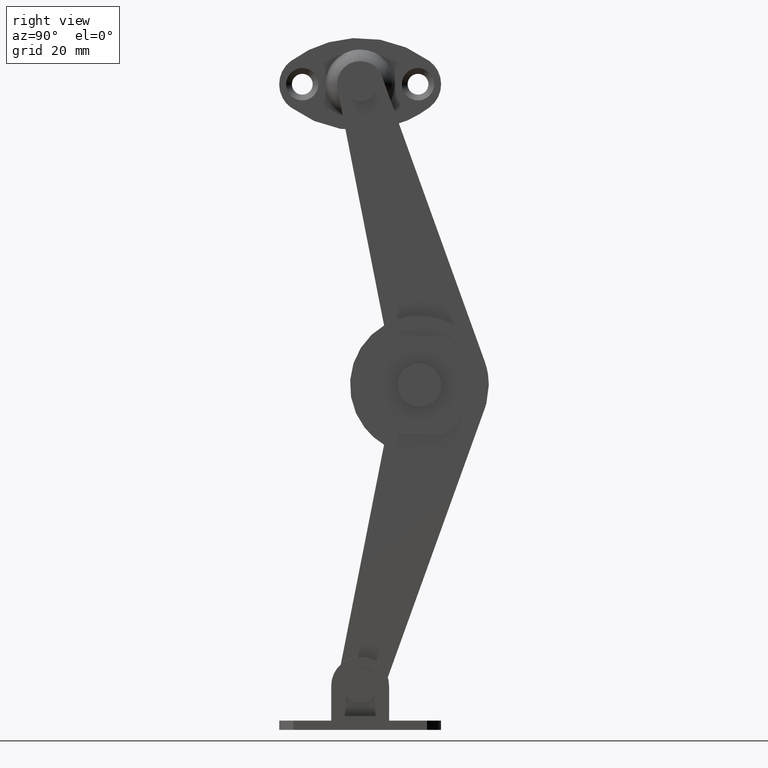
[diagram: clean part render]
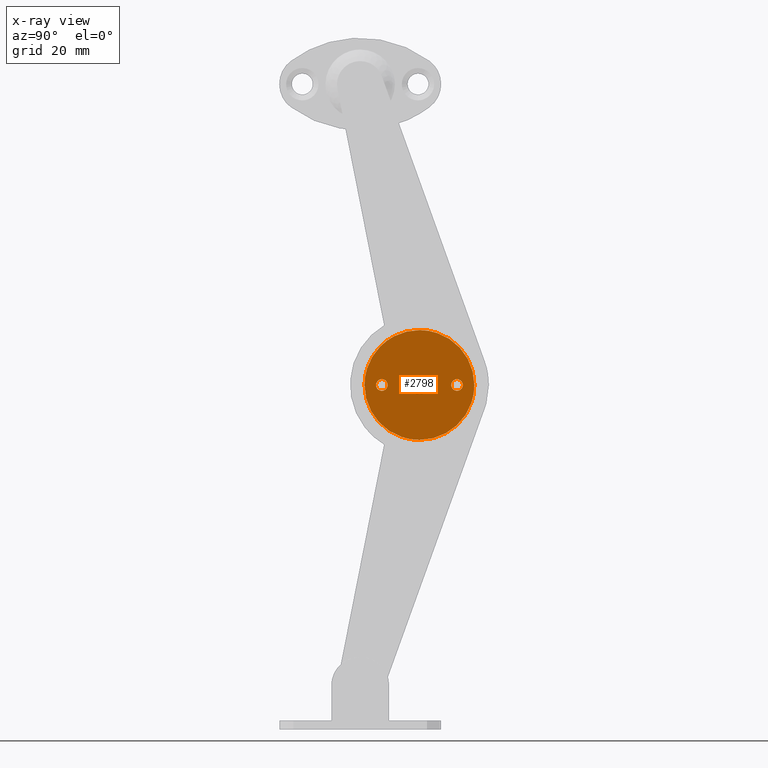
[diagram: x-ray — body ghosted, one internal face saturated and labeled with its STEP entity id]
A machine part, right view, then the same camera in x-ray: the body is ghosted and one INTERNAL B-rep face — a face not visible from any outside direction — is saturated and labeled: STEP entity #2798.
In plain terms, the highlighted face is a freeform B-spline surface patch.
Its self-contained STEP definition (entity closure, byte-faithful):
#1976=CARTESIAN_POINT('',(5.500000000000000,3.101231174622307,0.763555625562746));
#1977=VERTEX_POINT('',#1976);
#1983=CARTESIAN_POINT('',(5.500000000000000,2.746973262321153,0.000000075354275));
#1984=VERTEX_POINT('',#1983);
#1985=CARTESIAN_POINT('',(5.500000000000000,3.101231174622307,0.763555625562746));
#1986=CARTESIAN_POINT('',(5.499999999999995,3.018264551614383,0.693464261853822));
#1987=CARTESIAN_POINT('',(5.500000000000010,2.881497121968171,0.532894229676392));
#1988=CARTESIAN_POINT('',(5.499999999999998,2.769180346171755,0.262448766694234));
#1989=CARTESIAN_POINT('',(5.499999999999996,2.746959930396125,0.081450339986608));
#1990=CARTESIAN_POINT('',(5.500000000000000,2.746973262321153,0.000000075354275));
#1991=B_SPLINE_CURVE_WITH_KNOTS('',3,(#1985,#1986,#1987,#1988,#1989,#1990),.UNSPECIFIED.,.F.,.U.,(4,1,1,4),(0.000000092502401,0.325823542214571,0.624467632066516,0.868828182864586),.UNSPECIFIED.);
#1992=EDGE_CURVE('',#1977,#1984,#1991,.T.);
#1994=CARTESIAN_POINT('',(5.500000000000000,3.746973262321150,-1.000000000000000));
#1995=VERTEX_POINT('',#1994);
#1996=CARTESIAN_POINT('',(5.500000000000000,2.746973262321153,0.000000075354275));
#1997=CARTESIAN_POINT('',(5.500000000000004,2.746939603212214,-0.106349447042598));
#1998=CARTESIAN_POINT('',(5.499999999999993,2.786403337311727,-0.351827811797574));
#1999=CARTESIAN_POINT('',(5.499999999999997,2.958909321883511,-0.647974648553926));
#2000=CARTESIAN_POINT('',(5.500000000000001,3.180202641837875,-0.833891085342265));
#2001=CARTESIAN_POINT('',(5.500000000000005,3.427999297458877,-0.962494275878654));
#2002=CARTESIAN_POINT('',(5.499999999999998,3.616042359832250,-1.000155919354968));
#2003=CARTESIAN_POINT('',(5.500000000000000,3.746973262321150,-1.000000000000000));
#2004=B_SPLINE_CURVE_WITH_KNOTS('',3,(#1996,#1997,#1998,#1999,#2000,#2001,#2002,#2003),.UNSPECIFIED.,.F.,.U.,(4,1,1,1,1,4),(0.000000279960961,0.319075630946871,0.736351364546628,1.006309378227087,1.178126950739634,1.570835786861316),.UNSPECIFIED.);
#2005=EDGE_CURVE('',#1984,#1995,#2004,.T.);
#2007=CARTESIAN_POINT('',(5.500000000000000,4.746973262321149,-0.000000075354277));
#2008=VERTEX_POINT('',#2007);
#2009=CARTESIAN_POINT('',(5.500000000000000,3.746973262321150,-1.000000000000000));
#2010=CARTESIAN_POINT('',(5.500000000000002,3.918895784061225,-1.000434038676849));
#2011=CARTESIAN_POINT('',(5.500000000000000,4.163883112678332,-0.935154970303376));
#2012=CARTESIAN_POINT('',(5.500000000000004,4.437370115167362,-0.737343671710825));
#2013=CARTESIAN_POINT('',(5.499999999999994,4.591523347667907,-0.554168469176058));
#2014=CARTESIAN_POINT('',(5.500000000000005,4.714261109344331,-0.302652220103985));
#2015=CARTESIAN_POINT('',(5.500000000000007,4.747061483268317,-0.114550637292840));
#2016=CARTESIAN_POINT('',(5.500000000000000,4.746973262321149,-0.000000075354277));
#2017=B_SPLINE_CURVE_WITH_KNOTS('',3,(#2009,#2010,#2011,#2012,#2013,#2014,#2015,#2016),.UNSPECIFIED.,.F.,.U.,(4,1,1,1,1,4),(0.000000280063426,0.515444706754066,0.736351324670333,1.006309323662234,1.227218501160870,1.570835701917371),.UNSPECIFIED.);
#2018=EDGE_CURVE('',#1995,#2008,#2017,.T.);
#2020=CARTESIAN_POINT('',(5.500000000000000,4.472347745218104,0.688354430461838));
#2021=VERTEX_POINT('',#2020);
#2022=CARTESIAN_POINT('',(5.500000000000000,4.746973262321149,-0.000000075354277));
#2023=CARTESIAN_POINT('',(5.499999999999998,4.747023575746380,0.110724198141549));
#2024=CARTESIAN_POINT('',(5.500000000000000,4.704527775724507,0.363763568218193));
#2025=CARTESIAN_POINT('',(5.500000000000002,4.570503083332905,0.585208104801776));
#2026=CARTESIAN_POINT('',(5.500000000000000,4.472347745218104,0.688354430461838));
#2027=B_SPLINE_CURVE_WITH_KNOTS('',3,(#2022,#2023,#2024,#2025,#2026),.UNSPECIFIED.,.F.,.U.,(4,1,4),(0.000000059499898,0.332172369733507,0.759235913434067),.UNSPECIFIED.);
#2028=EDGE_CURVE('',#2008,#2021,#2027,.T.);
#2107=CARTESIAN_POINT('',(5.500000000000000,3.746973262321150,1.0));
#2108=VERTEX_POINT('',#2107);
#2109=CARTESIAN_POINT('',(5.500000000000000,4.472347745218104,0.688354430461838));
#2110=CARTESIAN_POINT('',(5.500000000000005,4.385122576152674,0.780432013743911));
#2111=CARTESIAN_POINT('',(5.499999999999996,4.161046227194833,0.940592202719877));
#2112=CARTESIAN_POINT('',(5.500000000000001,3.890715980265631,1.000210075695861));
#2113=CARTESIAN_POINT('',(5.500000000000000,3.746973262321150,1.0));
#2114=B_SPLINE_CURVE_WITH_KNOTS('',3,(#2109,#2110,#2111,#2112,#2113),.UNSPECIFIED.,.F.,.U.,(4,1,4),(0.000000082981635,0.380459844575957,0.811600022451455),.UNSPECIFIED.);
#2115=EDGE_CURVE('',#2021,#2108,#2114,.T.);
#2117=CARTESIAN_POINT('',(5.500000000000000,3.746973262321150,1.0));
#2118=CARTESIAN_POINT('',(5.499999999999999,3.644593537738520,1.000050388129216));
#2119=CARTESIAN_POINT('',(5.500000000000004,3.410623991678573,0.963740735704477));
#2120=CARTESIAN_POINT('',(5.500000000000004,3.201657129426836,0.848685281217780));
#2121=CARTESIAN_POINT('',(5.500000000000000,3.101231174622307,0.763555625562746));
#2122=B_SPLINE_CURVE_WITH_KNOTS('',3,(#2117,#2118,#2119,#2120,#2121),.UNSPECIFIED.,.F.,.U.,(4,1,4),(0.000000048454397,0.307147560869581,0.702051018800114),.UNSPECIFIED.);
#2123=EDGE_CURVE('',#2108,#1977,#2122,.T.);
#2167=CARTESIAN_POINT('',(5.500000000000000,16.101231174622310,0.763555625562746));
#2168=VERTEX_POINT('',#2167);
#2174=CARTESIAN_POINT('',(5.500000000000000,15.746973262321150,0.000000075354275));
#2175=VERTEX_POINT('',#2174);
#2176=CARTESIAN_POINT('',(5.500000000000000,16.101231174622310,0.763555625562746));
#2177=CARTESIAN_POINT('',(5.500000000000000,16.025195869688691,0.699295768931956));
#2178=CARTESIAN_POINT('',(5.500000000000003,15.886504349503531,0.540958193571461));
#2179=CARTESIAN_POINT('',(5.500000000000012,15.770268127382360,0.271513373870808));
#2180=CARTESIAN_POINT('',(5.499999999999989,15.746964843578070,0.081448703885008));
#2181=CARTESIAN_POINT('',(5.500000000000000,15.746973262321150,0.000000075354275));
#2182=B_SPLINE_CURVE_WITH_KNOTS('',3,(#2176,#2177,#2178,#2179,#2180,#2181),.UNSPECIFIED.,.F.,.U.,(4,1,1,4),(0.000000092502642,0.298663618590785,0.624467632066582,0.868828182864582),.UNSPECIFIED.);
#2183=EDGE_CURVE('',#2168,#2175,#2182,.T.);
#2185=CARTESIAN_POINT('',(5.500000000000000,16.746973262321148,-0.999999999999999));
#2186=VERTEX_POINT('',#2185);
#2187=CARTESIAN_POINT('',(5.500000000000000,15.746973262321150,0.000000075354275));
#2188=CARTESIAN_POINT('',(5.499999999999989,15.746742476447080,-0.147307297190278));
#2189=CARTESIAN_POINT('',(5.499999999999985,15.807730226928509,-0.417058088339358));
#2190=CARTESIAN_POINT('',(5.500000000000099,16.031907927682479,-0.727296611164336));
#2191=CARTESIAN_POINT('',(5.499999999999752,16.346251552996311,-0.942906262244544));
#2192=CARTESIAN_POINT('',(5.500000000000261,16.599668823243139,-1.000229397503235));
#2193=CARTESIAN_POINT('',(5.500000000000000,16.746973262321148,-0.999999999999999));
#2194=B_SPLINE_CURVE_WITH_KNOTS('',3,(#2187,#2188,#2189,#2190,#2191,#2192,#2193),.UNSPECIFIED.,.F.,.U.,(4,1,1,1,4),(0.000000279961942,0.441800355216181,0.809920607290484,1.129035344321470,1.570835786861317),.UNSPECIFIED.);
#2195=EDGE_CURVE('',#2175,#2186,#2194,.T.);
#2197=CARTESIAN_POINT('',(5.500000000000000,17.746973262321148,-0.000000075354276));
#2198=VERTEX_POINT('',#2197);
#2199=CARTESIAN_POINT('',(5.500000000000000,16.746973262321148,-0.999999999999999));
#2200=CARTESIAN_POINT('',(5.500000000000016,16.877901180281011,-1.000147458322347));
#2201=CARTESIAN_POINT('',(5.499999999999984,17.082307220535089,-0.959230814966327));
#2202=CARTESIAN_POINT('',(5.500000000000018,17.341902025300950,-0.816327546082075));
#2203=CARTESIAN_POINT('',(5.499999999999988,17.547623192821039,-0.625331078536956));
#2204=CARTESIAN_POINT('',(5.500000000000013,17.707211315039370,-0.343589074569817));
#2205=CARTESIAN_POINT('',(5.499999999999994,17.747037043074741,-0.114541944956821));
#2206=CARTESIAN_POINT('',(5.500000000000000,17.746973262321148,-0.000000075354276));
#2207=B_SPLINE_CURVE_WITH_KNOTS('',3,(#2199,#2200,#2201,#2202,#2203,#2204,#2205,#2206),.UNSPECIFIED.,.F.,.U.,(4,1,1,1,1,4),(0.000000280061553,0.392710020774392,0.613615461163643,0.883567144165357,1.227218501160543,1.570835701917383),.UNSPECIFIED.);
#2208=EDGE_CURVE('',#2186,#2198,#2207,.T.);
#2210=CARTESIAN_POINT('',(5.500000000000000,17.472347745218102,0.688354430461839));
#2211=VERTEX_POINT('',#2210);
#2212=CARTESIAN_POINT('',(5.500000000000000,17.746973262321148,-0.000000075354276));
#2213=CARTESIAN_POINT('',(5.499999999999996,17.747128487368538,0.134459325471806));
#2214=CARTESIAN_POINT('',(5.500000000000007,17.695114943701618,0.387402711005925));
#2215=CARTESIAN_POINT('',(5.500000000000000,17.554071757060090,0.602345823704303));
#2216=CARTESIAN_POINT('',(5.500000000000000,17.472347745218102,0.688354430461839));
#2217=B_SPLINE_CURVE_WITH_KNOTS('',3,(#2212,#2213,#2214,#2215,#2216),.UNSPECIFIED.,.F.,.U.,(4,1,4),(0.000000059499835,0.403325843501995,0.759235913434069),.UNSPECIFIED.);
#2218=EDGE_CURVE('',#2198,#2211,#2217,.T.);
#2296=CARTESIAN_POINT('',(5.500000000000000,16.746973262321148,1.000000000000001));
#2297=VERTEX_POINT('',#2296);
#2298=CARTESIAN_POINT('',(5.500000000000000,17.472347745218102,0.688354430461839));
#2299=CARTESIAN_POINT('',(5.500000000000004,17.385120388006040,0.780427138440315));
#2300=CARTESIAN_POINT('',(5.500000000000002,17.161052198033449,0.940606665948201));
#2301=CARTESIAN_POINT('',(5.500000000000000,16.890713384166709,1.000198713666217));
#2302=CARTESIAN_POINT('',(5.500000000000000,16.746973262321148,1.000000000000001));
#2303=B_SPLINE_CURVE_WITH_KNOTS('',3,(#2298,#2299,#2300,#2301,#2302),.UNSPECIFIED.,.F.,.U.,(4,1,4),(0.000000082982433,0.380459844576124,0.811600022451455),.UNSPECIFIED.);
#2304=EDGE_CURVE('',#2211,#2297,#2303,.T.);
#2306=CARTESIAN_POINT('',(5.500000000000000,16.746973262321148,1.000000000000001));
#2307=CARTESIAN_POINT('',(5.500000000000008,16.615323320736849,1.000152487082222));
#2308=CARTESIAN_POINT('',(5.499999999999986,16.381462499481319,0.953064574340600));
#2309=CARTESIAN_POINT('',(5.500000000000017,16.179373201832419,0.829705254204395));
#2310=CARTESIAN_POINT('',(5.500000000000000,16.101231174622310,0.763555625562746));
#2311=B_SPLINE_CURVE_WITH_KNOTS('',3,(#2306,#2307,#2308,#2309,#2310),.UNSPECIFIED.,.F.,.U.,(4,1,4),(0.000000048454626,0.394903506381800,0.702051018800111),.UNSPECIFIED.);
#2312=EDGE_CURVE('',#2297,#2168,#2311,.T.);
#2356=CARTESIAN_POINT('',(5.500000000000001,11.392307299489779,0.968613541957452));
#2357=VERTEX_POINT('',#2356);
#2363=CARTESIAN_POINT('',(5.500000000000000,10.246973262321140,1.500000000000002));
#2364=VERTEX_POINT('',#2363);
#2365=CARTESIAN_POINT('',(5.500000000000001,11.392307299489779,0.968613541957452));
#2366=CARTESIAN_POINT('',(5.499999999999996,11.243553967501610,1.145122482735536));
#2367=CARTESIAN_POINT('',(5.500000000000022,10.884827054675430,1.410162885297682));
#2368=CARTESIAN_POINT('',(5.499999999999975,10.450633458435689,1.500198197194138));
#2369=CARTESIAN_POINT('',(5.500000000000000,10.246973262321140,1.500000000000002));
#2370=B_SPLINE_CURVE_WITH_KNOTS('',3,(#2365,#2366,#2367,#2368,#2369),.UNSPECIFIED.,.F.,.U.,(4,1,4),(0.000000083457594,0.692330028737345,1.303242774409602),.UNSPECIFIED.);
#2371=EDGE_CURVE('',#2357,#2364,#2370,.T.);
#2373=CARTESIAN_POINT('',(5.500000000000000,8.746973262324227,-0.000003042715460));
#2374=VERTEX_POINT('',#2373);
#2375=CARTESIAN_POINT('',(5.500000000000000,10.246973262321140,1.500000000000002));
#2376=CARTESIAN_POINT('',(5.499999999999982,10.026020416261600,1.500316773705991));
#2377=CARTESIAN_POINT('',(5.500000000000020,9.621354798627051,1.408919630390881));
#2378=CARTESIAN_POINT('',(5.500000000000008,9.156054195739142,1.072551927399056));
#2379=CARTESIAN_POINT('',(5.499999999999973,8.832560798669469,0.601106342113876));
#2380=CARTESIAN_POINT('',(5.500000000000038,8.746671313031017,0.220935439444507));
#2381=CARTESIAN_POINT('',(5.500000000000000,8.746973262324227,-0.000003042715460));
#2382=B_SPLINE_CURVE_WITH_KNOTS('',3,(#2375,#2376,#2377,#2378,#2379,#2380,#2381),.UNSPECIFIED.,.F.,.U.,(4,1,1,1,4),(0.000000283861715,0.662700760889219,1.214902453565014,1.693554856234692,2.356255331524174),.UNSPECIFIED.);
#2383=EDGE_CURVE('',#2364,#2374,#2382,.T.);
#2385=CARTESIAN_POINT('',(5.500000000000000,10.246973262321140,-1.499999999999998));
#2386=VERTEX_POINT('',#2385);
#2387=CARTESIAN_POINT('',(5.500000000000000,8.746973262324227,-0.000003042715460));
#2388=CARTESIAN_POINT('',(5.499999999999999,8.746861545996756,-0.171822070326154));
#2389=CARTESIAN_POINT('',(5.500000000000009,8.804521788459931,-0.503097638430968));
#2390=CARTESIAN_POINT('',(5.500000000000000,9.014257694124488,-0.884190575551771));
#2391=CARTESIAN_POINT('',(5.500000000000000,9.286409950959261,-1.169938880105032));
#2392=CARTESIAN_POINT('',(5.499999999999985,9.670440260591736,-1.419903121654824));
#2393=CARTESIAN_POINT('',(5.499999999999993,10.026014295606720,-1.500345477506091));
#2394=CARTESIAN_POINT('',(5.500000000000000,10.246973262321140,-1.499999999999998));
#2395=B_SPLINE_CURVE_WITH_KNOTS('',3,(#2387,#2388,#2389,#2390,#2391,#2392,#2393,#2394),.UNSPECIFIED.,.F.,.U.,(4,1,1,1,1,4),(0.000000288017779,0.515426583519847,0.994074968509131,1.288574122024787,1.693552388405666,2.356251901589093),.UNSPECIFIED.);
#2396=EDGE_CURVE('',#2374,#2386,#2395,.T.);
#2398=CARTESIAN_POINT('',(5.500000000000002,11.279504755844140,-1.088060860417998));
#2399=VERTEX_POINT('',#2398);
#2400=CARTESIAN_POINT('',(5.500000000000000,10.246973262321140,-1.499999999999998));
#2401=CARTESIAN_POINT('',(5.500000000000015,10.424936779936241,-1.500139606686057));
#2402=CARTESIAN_POINT('',(5.499999999999981,10.804441182681810,-1.431620550348039));
#2403=CARTESIAN_POINT('',(5.500000000000014,11.133352545530530,-1.227064351106837));
#2404=CARTESIAN_POINT('',(5.500000000000002,11.279504755844140,-1.088060860417998));
#2405=B_SPLINE_CURVE_WITH_KNOTS('',3,(#2400,#2401,#2402,#2403,#2404),.UNSPECIFIED.,.F.,.U.,(4,1,4),(0.000000055617372,0.533851520431574,1.138853963789040),.UNSPECIFIED.);
#2406=EDGE_CURVE('',#2386,#2399,#2405,.T.);
#2484=CARTESIAN_POINT('',(5.500000000000001,11.746973262318051,0.000003042715470));
#2485=VERTEX_POINT('',#2484);
#2486=CARTESIAN_POINT('',(5.500000000000002,11.279504755844140,-1.088060860417998));
#2487=CARTESIAN_POINT('',(5.500000000000019,11.454687601032020,-0.922485013528898));
#2488=CARTESIAN_POINT('',(5.499999999999974,11.679456076450080,-0.570636515109932));
#2489=CARTESIAN_POINT('',(5.500000000000024,11.747053558361801,-0.164846950357479));
#2490=CARTESIAN_POINT('',(5.500000000000001,11.746973262318051,0.000003042715470));
#2491=B_SPLINE_CURVE_WITH_KNOTS('',3,(#2486,#2487,#2488,#2489,#2490),.UNSPECIFIED.,.F.,.U.,(4,1,4),(0.000000077546991,0.722828752754165,1.217402295470105),.UNSPECIFIED.);
#2492=EDGE_CURVE('',#2399,#2485,#2491,.T.);
#2494=CARTESIAN_POINT('',(5.500000000000001,11.746973262318051,0.000003042715470));
#2495=CARTESIAN_POINT('',(5.499999999999999,11.747001159338030,0.131628305940631));
#2496=CARTESIAN_POINT('',(5.500000000000005,11.700516654936539,0.482631893513646));
#2497=CARTESIAN_POINT('',(5.500000000000019,11.534292416444501,0.801290926831948));
#2498=CARTESIAN_POINT('',(5.500000000000001,11.392307299489779,0.968613541957452));
#2499=B_SPLINE_CURVE_WITH_KNOTS('',3,(#2494,#2495,#2496,#2497,#2498),.UNSPECIFIED.,.F.,.U.,(4,1,4),(0.000000047974360,0.394889115841552,1.053010386949280),.UNSPECIFIED.);
#2500=EDGE_CURVE('',#2485,#2357,#2499,.T.);
#2545=CARTESIAN_POINT('',(5.500000000000000,3.438789232603965,6.625603707953229));
#2546=VERTEX_POINT('',#2545);
#2552=CARTESIAN_POINT('',(5.500000000000000,10.246973262321140,9.500000000000002));
#2553=VERTEX_POINT('',#2552);
#2554=CARTESIAN_POINT('',(5.500000000000000,10.246973262321140,9.500000000000002));
#2555=CARTESIAN_POINT('',(5.500000000000008,9.574900454006560,9.500095629618391));
#2556=CARTESIAN_POINT('',(5.499999999999991,8.270348073692810,9.360987974990406));
#2557=CARTESIAN_POINT('',(5.500000000000013,6.417557320713463,8.763268998346728));
#2558=CARTESIAN_POINT('',(5.499999999999949,4.789568738495135,7.848568041747922));
#2559=CARTESIAN_POINT('',(5.500000000000031,3.852324276954939,7.050622286306175));
#2560=CARTESIAN_POINT('',(5.500000000000000,3.438789232603965,6.625603707953229));
#2561=B_SPLINE_CURVE_WITH_KNOTS('',3,(#2554,#2555,#2556,#2557,#2558,#2559,#2560),.UNSPECIFIED.,.F.,.U.,(4,1,1,1,4),(0.000000024711917,2.016212166222108,3.913807739666234,5.811431895230525,7.590439482728644),.UNSPECIFIED.);
#2562=EDGE_CURVE('',#2553,#2546,#2561,.T.);
#2564=CARTESIAN_POINT('',(5.499999999999999,19.746973262321060,0.000001205215964));
#2565=VERTEX_POINT('',#2564);
#2566=CARTESIAN_POINT('',(5.499999999999999,19.746973262321060,0.000001205215964));
#2567=CARTESIAN_POINT('',(5.499999999999998,19.747213220763921,0.816109401533110));
#2568=CARTESIAN_POINT('',(5.499999999999999,19.595777089933879,1.981779009340634));
#2569=CARTESIAN_POINT('',(5.500000000000000,19.032661475564289,3.722240971223645));
#2570=CARTESIAN_POINT('',(5.499999999999984,18.321410595698271,5.113935043055388));
#2571=CARTESIAN_POINT('',(5.500000000000018,17.289472558405311,6.436067083055116));
#2572=CARTESIAN_POINT('',(5.499999999999989,15.976338663296850,7.656192329512024));
#2573=CARTESIAN_POINT('',(5.499999999999925,14.476316428030501,8.580390327961855));
#2574=CARTESIAN_POINT('',(5.500000000000046,12.461886926128511,9.315064064070786));
#2575=CARTESIAN_POINT('',(5.500000000000051,11.101947715753900,9.500316085371390));
#2576=CARTESIAN_POINT('',(5.500000000000000,10.246973262321140,9.500000000000002));
#2577=B_SPLINE_CURVE_WITH_KNOTS('',3,(#2566,#2567,#2568,#2569,#2570,#2571,#2572,#2573,#2574,#2575,#2576),.UNSPECIFIED.,.F.,.U.,(4,1,1,1,1,1,1,1,4),(0.000000087017884,2.448233164831789,3.497495557203710,5.479432654827759,7.111623779941777,8.510542306412468,10.842242906003280,12.357840343372599,14.922658058031709),.UNSPECIFIED.);
#2578=EDGE_CURVE('',#2565,#2553,#2577,.T.);
#2580=CARTESIAN_POINT('',(5.500000000000000,10.246973262321140,-9.499999999999998));
#2581=VERTEX_POINT('',#2580);
#2582=CARTESIAN_POINT('',(5.500000000000000,10.246973262321140,-9.499999999999998));
#2583=CARTESIAN_POINT('',(5.500000000000005,10.752152635075630,-9.500011762752047));
#2584=CARTESIAN_POINT('',(5.499999999999996,11.917997424673599,-9.406880243048551));
#2585=CARTESIAN_POINT('',(5.500000000000003,13.539959383300630,-8.968694537929160));
#2586=CARTESIAN_POINT('',(5.500000000000000,15.156380846812450,-8.192012206379596));
#2587=CARTESIAN_POINT('',(5.500000000000001,16.453880591549421,-7.254141567727182));
#2588=CARTESIAN_POINT('',(5.500000000000020,17.732977522378320,-5.943384430071774));
#2589=CARTESIAN_POINT('',(5.499999999999913,18.745206176016790,-4.408184206539910));
#2590=CARTESIAN_POINT('',(5.500000000000075,19.546211805692462,-2.331513939206370));
#2591=CARTESIAN_POINT('',(5.499999999999916,19.747271644941129,-0.854962081230056));
#2592=CARTESIAN_POINT('',(5.499999999999999,19.746973262321060,0.000001205215964));
#2593=B_SPLINE_CURVE_WITH_KNOTS('',3,(#2582,#2583,#2584,#2585,#2586,#2587,#2588,#2589,#2590,#2591,#2592),.UNSPECIFIED.,.F.,.U.,(4,1,1,1,1,1,1,1,4),(0.000000086610015,1.515557629474909,3.497495875260780,5.013098897114224,6.878444320031098,8.277398256391983,10.492485157046030,12.357841468732490,14.922659416599450),.UNSPECIFIED.);
#2594=EDGE_CURVE('',#2581,#2565,#2593,.T.);
#2596=CARTESIAN_POINT('',(5.500000000000000,3.242838283269572,-6.418107111774969));
#2597=VERTEX_POINT('',#2596);
#2598=CARTESIAN_POINT('',(5.500000000000000,3.242838283269572,-6.418107111774969));
#2599=CARTESIAN_POINT('',(5.499999999999996,3.713859251810376,-6.932338973686958));
#2600=CARTESIAN_POINT('',(5.500000000000006,4.614624264986195,-7.720321072406308));
#2601=CARTESIAN_POINT('',(5.500000000000004,6.281964739941185,-8.699876993542365));
#2602=CARTESIAN_POINT('',(5.499999999999977,8.113972743205794,-9.341261426654647));
#2603=CARTESIAN_POINT('',(5.500000000000015,9.549632252487829,-9.500108884043243));
#2604=CARTESIAN_POINT('',(5.500000000000000,10.246973262321140,-9.499999999999998));
#2605=B_SPLINE_CURVE_WITH_KNOTS('',3,(#2598,#2599,#2600,#2601,#2602,#2603,#2604),.UNSPECIFIED.,.F.,.U.,(4,1,1,1,4),(0.000000023709327,2.092024159589341,3.568766465442361,5.783829384309437,7.875853520182186),.UNSPECIFIED.);
#2606=EDGE_CURVE('',#2597,#2581,#2605,.T.);
#2697=CARTESIAN_POINT('',(5.500000000000000,0.746973262321217,-0.000001205215759));
#2698=VERTEX_POINT('',#2697);
#2699=CARTESIAN_POINT('',(5.500000000000000,0.746973262321217,-0.000001205215759));
#2700=CARTESIAN_POINT('',(5.499999999999999,0.746706699292627,-0.844175778073414));
#2701=CARTESIAN_POINT('',(5.500000000000011,0.929202616507213,-2.201992951397958));
#2702=CARTESIAN_POINT('',(5.499999999999989,1.506473547290623,-3.794457455850411));
#2703=CARTESIAN_POINT('',(5.500000000000027,2.203617034044755,-5.130319592060387));
#2704=CARTESIAN_POINT('',(5.499999999999984,2.796425187840913,-5.931105087300495));
#2705=CARTESIAN_POINT('',(5.500000000000000,3.242838283269572,-6.418107111774969));
#2706=B_SPLINE_CURVE_WITH_KNOTS('',3,(#2699,#2700,#2701,#2702,#2703,#2704,#2705),.UNSPECIFIED.,.F.,.U.,(4,1,1,1,4),(0.000000024732954,2.532447323878497,4.073929082875361,5.064890378894989,7.046805114384395),.UNSPECIFIED.);
#2707=EDGE_CURVE('',#2698,#2597,#2706,.T.);
#2709=CARTESIAN_POINT('',(5.500000000000000,3.438789232603965,6.625603707953229));
#2710=CARTESIAN_POINT('',(5.500000000000005,2.985942913377810,6.160409041641324));
#2711=CARTESIAN_POINT('',(5.500000000000004,2.342978722789564,5.347432996200979));
#2712=CARTESIAN_POINT('',(5.500000000000001,1.544904925079055,3.908878038568521));
#2713=CARTESIAN_POINT('',(5.499999999999986,0.926962000472687,2.214853075037115));
#2714=CARTESIAN_POINT('',(5.500000000000026,0.746762171954116,0.801968952311410));
#2715=CARTESIAN_POINT('',(5.500000000000000,0.746973262321217,-0.000001205215759));
#2716=B_SPLINE_CURVE_WITH_KNOTS('',3,(#2709,#2710,#2711,#2712,#2713,#2714,#2715),.UNSPECIFIED.,.F.,.U.,(4,1,1,1,4),(0.000000025302071,1.947621771987703,3.093285275573988,4.926333846970946,7.332220307250206),.UNSPECIFIED.);
#2717=EDGE_CURVE('',#2546,#2698,#2716,.T.);
#2761=CARTESIAN_POINT('',(5.500000000000090,-0.202076700853090,10.449049963174311));
#2762=CARTESIAN_POINT('',(5.500000000000090,20.696023735115080,10.449049963174311));
#2763=CARTESIAN_POINT('',(5.500000000000090,-0.202076700853090,-10.449050472794021));
#2764=CARTESIAN_POINT('',(5.500000000000090,20.696023735115080,-10.449050472794021));
#2765=B_SPLINE_SURFACE_WITH_KNOTS('',1,1,((#2761,#2763),(#2762,#2764)),.UNSPECIFIED.,.F.,.F.,.U.,(2,2),(2,2),(0.0,20.898100435968171),(0.0,20.898100435968342),.UNSPECIFIED.);
#2766=ORIENTED_EDGE('',*,*,#2562,.T.);
#2767=ORIENTED_EDGE('',*,*,#2717,.T.);
#2768=ORIENTED_EDGE('',*,*,#2707,.T.);
#2769=ORIENTED_EDGE('',*,*,#2606,.T.);
#2770=ORIENTED_EDGE('',*,*,#2594,.T.);
#2771=ORIENTED_EDGE('',*,*,#2578,.T.);
#2772=EDGE_LOOP('',(#2766,#2767,#2768,#2769,#2770,#2771));
#2773=FACE_OUTER_BOUND('',#2772,.T.);
#2774=ORIENTED_EDGE('',*,*,#2195,.F.);
#2775=ORIENTED_EDGE('',*,*,#2183,.F.);
#2776=ORIENTED_EDGE('',*,*,#2312,.F.);
#2777=ORIENTED_EDGE('',*,*,#2304,.F.);
#2778=ORIENTED_EDGE('',*,*,#2218,.F.);
#2779=ORIENTED_EDGE('',*,*,#2208,.F.);
#2780=EDGE_LOOP('',(#2774,#2775,#2776,#2777,#2778,#2779));
#2781=FACE_BOUND('',#2780,.T.);
#2782=ORIENTED_EDGE('',*,*,#2383,.F.);
#2783=ORIENTED_EDGE('',*,*,#2371,.F.);
#2784=ORIENTED_EDGE('',*,*,#2500,.F.);
#2785=ORIENTED_EDGE('',*,*,#2492,.F.);
#2786=ORIENTED_EDGE('',*,*,#2406,.F.);
#2787=ORIENTED_EDGE('',*,*,#2396,.F.);
#2788=EDGE_LOOP('',(#2782,#2783,#2784,#2785,#2786,#2787));
#2789=FACE_BOUND('',#2788,.T.);
#2790=ORIENTED_EDGE('',*,*,#2005,.F.);
#2791=ORIENTED_EDGE('',*,*,#1992,.F.);
#2792=ORIENTED_EDGE('',*,*,#2123,.F.);
#2793=ORIENTED_EDGE('',*,*,#2115,.F.);
#2794=ORIENTED_EDGE('',*,*,#2028,.F.);
#2795=ORIENTED_EDGE('',*,*,#2018,.F.);
#2796=EDGE_LOOP('',(#2790,#2791,#2792,#2793,#2794,#2795));
#2797=FACE_BOUND('',#2796,.T.);
#2798=ADVANCED_FACE('',(#2773,#2781,#2789,#2797),#2765,.F.);